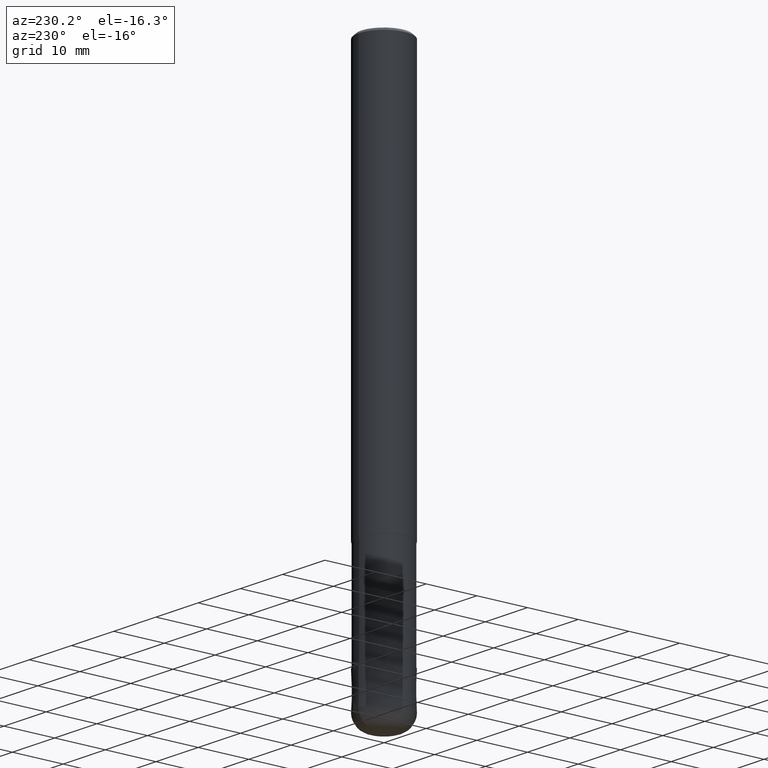
[diagram: clean part render]
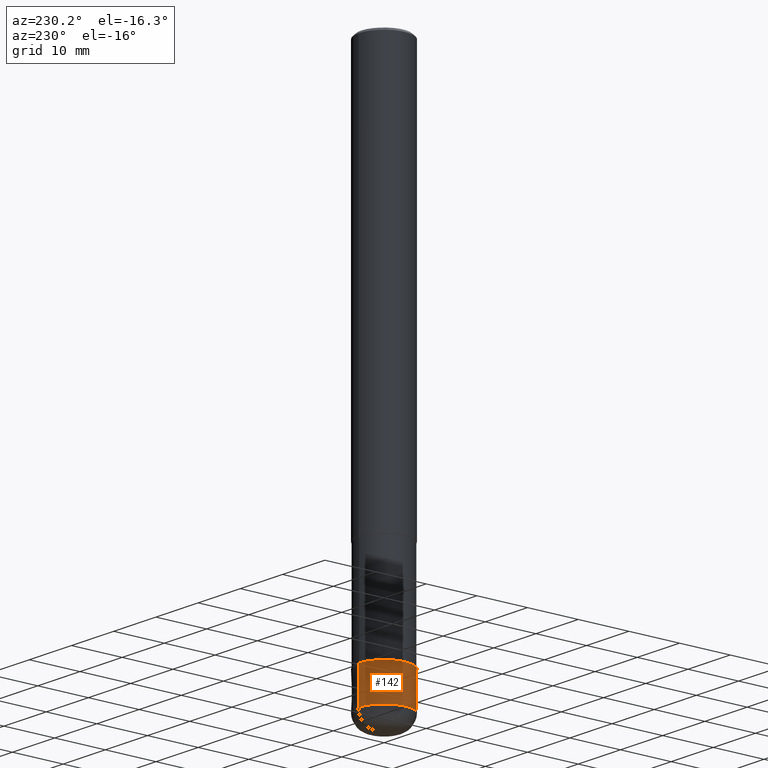
[diagram: same view with one face highlighted and labeled with its STEP entity id]
A machine part, auxiliary view. The second image highlights one B-rep face of the part: STEP entity #142.
In plain terms, the highlighted conical surface has half-angle 0.001 deg.
Its self-contained STEP definition (entity closure, byte-faithful):
#106=VERTEX_POINT('',#244);
#116=VERTEX_POINT('',#255);
#120=VERTEX_POINT('',#259);
#142=ADVANCED_FACE('',(#284),#285,.T.);
#152=VERTEX_POINT('',#295);
#174=EDGE_CURVE('',#120,#106,#320,.T.);
#186=EDGE_CURVE('',#152,#116,#336,.T.);
#190=EDGE_CURVE('',#106,#152,#340,.T.);
#202=EDGE_CURVE('',#120,#116,#353,.T.);
#244=CARTESIAN_POINT('',(6.1229093084765E-016,-4.9999,-100.0));
#255=CARTESIAN_POINT('',(0.0,5.0,-107.0));
#259=CARTESIAN_POINT('',(6.12303176911189E-016,-5.0,-107.0));
#284=FACE_OUTER_BOUND('',#441,.T.);
#285=CONICAL_SURFACE('',#442,4.99995,1.42857142847092E-005);
#295=CARTESIAN_POINT('',(0.0,4.9999,-100.0));
#320=LINE('',#487,#488);
#336=LINE('',#507,#508);
#340=CIRCLE('',#513,4.9999);
#353=CIRCLE('',#529,5.0);
#441=EDGE_LOOP('',(#598,#599,#600,#601));
#442=AXIS2_PLACEMENT_3D('',#602,#603,#604);
#487=CARTESIAN_POINT('',(6.12297053879419E-016,-4.99995,-103.5));
#488=VECTOR('',#647,1.0);
#507=CARTESIAN_POINT('',(-6.1229705387942E-016,4.99995,-103.5));
#508=VECTOR('',#678,1.0);
#513=AXIS2_PLACEMENT_3D('',#679,#680,#681);
#529=AXIS2_PLACEMENT_3D('',#696,#697,#698);
#598=ORIENTED_EDGE('',*,*,#186,.T.);
#599=ORIENTED_EDGE('',*,*,#202,.F.);
#600=ORIENTED_EDGE('',*,*,#174,.T.);
#601=ORIENTED_EDGE('',*,*,#190,.T.);
#602=CARTESIAN_POINT('',(0.0,0.0,-103.5));
#603=DIRECTION('',(0.0,-0.0,-1.0));
#604=DIRECTION('',(0.0,1.0,0.0));
#647=DIRECTION('',(-1.74943764813509E-021,1.42857142842233E-005,0.999999999897959));
#678=DIRECTION('',(-1.74943764813509E-021,1.42857142842233E-005,-0.999999999897959));
#679=CARTESIAN_POINT('',(0.0,0.0,-100.0));
#680=DIRECTION('',(0.0,0.0,-1.0));
#681=DIRECTION('',(0.0,1.0,0.0));
#696=CARTESIAN_POINT('',(0.0,0.0,-107.0));
#697=DIRECTION('',(0.0,0.0,-1.0));
#698=DIRECTION('',(0.0,1.0,0.0));